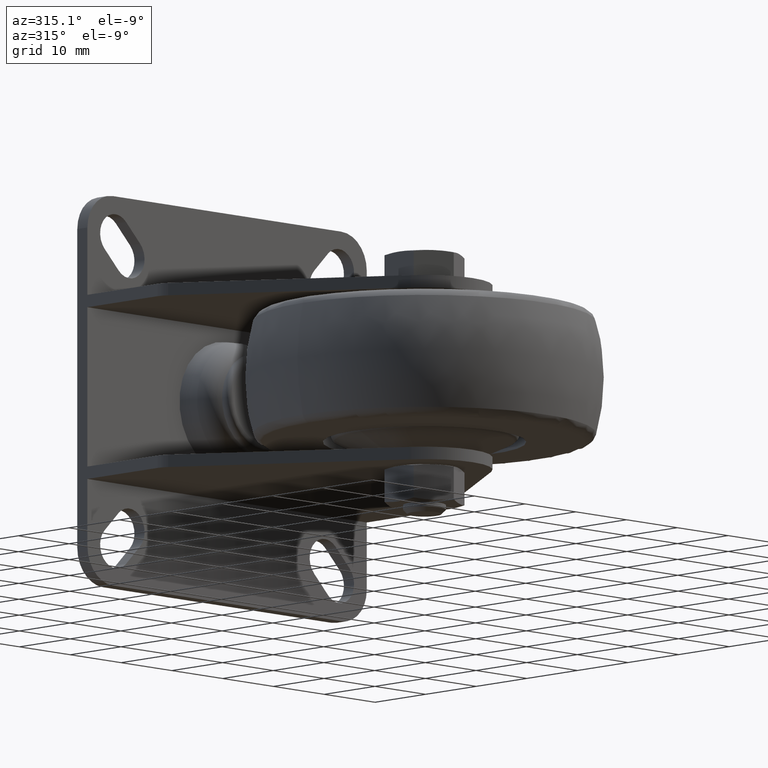
[diagram: clean part render]
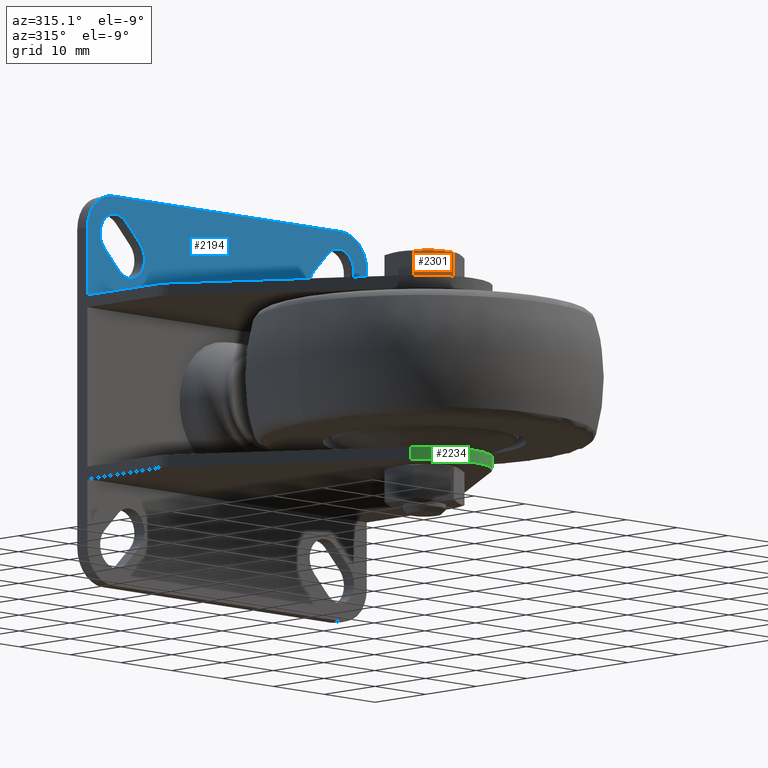
[diagram: same view with three faces highlighted in distinct colors, each labeled with its STEP entity id]
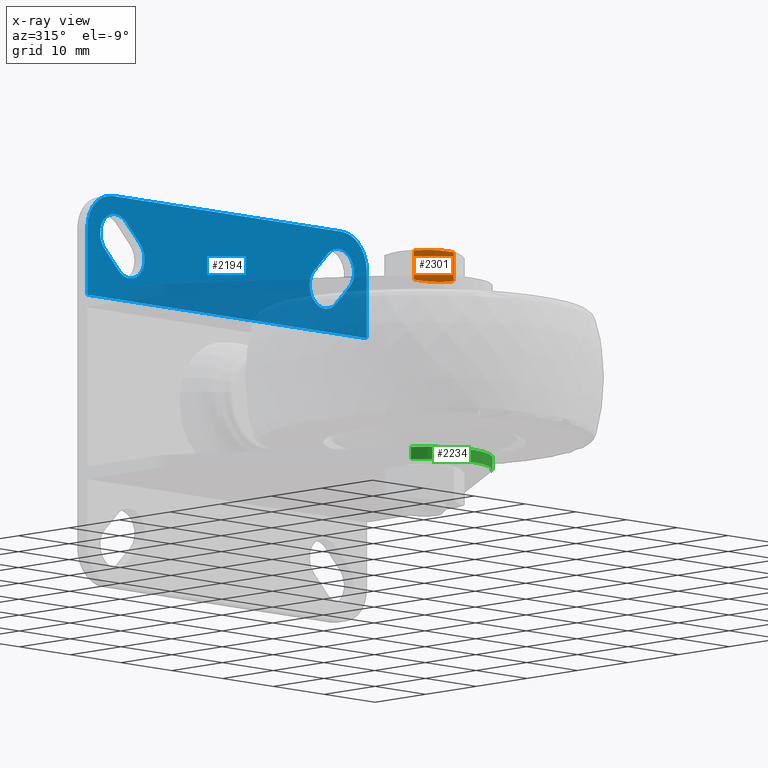
[diagram: x-ray of the same camera — body ghosted, the three highlighted faces saturated]
A machine part, auxiliary view with three faces highlighted in distinct colors.
The next image is the same camera in x-ray (body ghosted, the three faces saturated) — at least one of them is partly hidden behind the body in this view.
Their STEP definitions:

[orange] entity #2301 — the highlighted planar face has unit normal (-0.5, -0.866, 0).
#73=(
BOUNDED_CURVE()
B_SPLINE_CURVE(2,(#4230,#4231,#4232),.UNSPECIFIED.,.F.,.F.)
B_SPLINE_CURVE_WITH_KNOTS((3,3),(1.72543024172676,2.56289083292666),
 .UNSPECIFIED.)
CURVE()
GEOMETRIC_REPRESENTATION_ITEM()
RATIONAL_B_SPLINE_CURVE((2.8334591186335,3.0526279441978,3.0526279441978))
REPRESENTATION_ITEM('')
);
#74=(
BOUNDED_CURVE()
B_SPLINE_CURVE(2,(#4234,#4235,#4236),.UNSPECIFIED.,.F.,.F.)
B_SPLINE_CURVE_WITH_KNOTS((3,3),(2.56289083292666,3.40035142412655),
 .UNSPECIFIED.)
CURVE()
GEOMETRIC_REPRESENTATION_ITEM()
RATIONAL_B_SPLINE_CURVE((3.0526279441978,3.0526279441978,2.8334591186335))
REPRESENTATION_ITEM('')
);
#75=(
BOUNDED_CURVE()
B_SPLINE_CURVE(2,(#4240,#4241,#4242),.UNSPECIFIED.,.F.,.F.)
B_SPLINE_CURVE_WITH_KNOTS((3,3),(1.72543024172442,2.56289083292307),
 .UNSPECIFIED.)
CURVE()
GEOMETRIC_REPRESENTATION_ITEM()
RATIONAL_B_SPLINE_CURVE((2.83345911863049,3.05262794419439,3.05262794419439))
REPRESENTATION_ITEM('')
);
#76=(
BOUNDED_CURVE()
B_SPLINE_CURVE(2,(#4244,#4245,#4246),.UNSPECIFIED.,.F.,.F.)
B_SPLINE_CURVE_WITH_KNOTS((3,3),(2.56289083292307,3.40035142412172),
 .UNSPECIFIED.)
CURVE()
GEOMETRIC_REPRESENTATION_ITEM()
RATIONAL_B_SPLINE_CURVE((3.05262794419439,3.05262794419439,2.83345911863049))
REPRESENTATION_ITEM('')
);
#265=PLANE('',#2768);
#393=FACE_OUTER_BOUND('',#565,.T.);
#565=EDGE_LOOP('',(#2051,#2052,#2053,#2054,#2055,#2056));
#710=LINE('',#4238,#834);
#711=LINE('',#4247,#835);
#834=VECTOR('',#3444,1000.);
#835=VECTOR('',#3445,1000.);
#1166=VERTEX_POINT('',#4228);
#1167=VERTEX_POINT('',#4229);
#1168=VERTEX_POINT('',#4233);
#1169=VERTEX_POINT('',#4237);
#1170=VERTEX_POINT('',#4239);
#1171=VERTEX_POINT('',#4243);
#1465=EDGE_CURVE('',#1166,#1167,#73,.T.);
#1466=EDGE_CURVE('',#1167,#1168,#74,.T.);
#1467=EDGE_CURVE('',#1168,#1169,#710,.T.);
#1468=EDGE_CURVE('',#1169,#1170,#75,.T.);
#1469=EDGE_CURVE('',#1170,#1171,#76,.T.);
#1470=EDGE_CURVE('',#1166,#1171,#711,.T.);
#2051=ORIENTED_EDGE('',*,*,#1465,.T.);
#2052=ORIENTED_EDGE('',*,*,#1466,.T.);
#2053=ORIENTED_EDGE('',*,*,#1467,.T.);
#2054=ORIENTED_EDGE('',*,*,#1468,.T.);
#2055=ORIENTED_EDGE('',*,*,#1469,.T.);
#2056=ORIENTED_EDGE('',*,*,#1470,.F.);
#2301=ADVANCED_FACE('',(#393),#265,.T.);
#2768=AXIS2_PLACEMENT_3D('',#4227,#3442,#3443);
#3442=DIRECTION('center_axis',(0.,0.866025403784439,0.5));
#3443=DIRECTION('ref_axis',(0.,-0.5,0.866025403784439));
#3444=DIRECTION('',(1.,0.,0.));
#3445=DIRECTION('',(1.,0.,0.));
#4227=CARTESIAN_POINT('Origin',(-10.,5.77350269189626,0.));
#4228=CARTESIAN_POINT('',(-5.7927405783631,5.77350269189626,0.));
#4229=CARTESIAN_POINT('',(-6.,4.33012701892219,2.5));
#4230=CARTESIAN_POINT('Ctrl Pts',(-5.79274057836643,5.77350269189698,-1.24788752573619E-12));
#4231=CARTESIAN_POINT('Ctrl Pts',(-6.,5.00000000000029,1.33974596215511));
#4232=CARTESIAN_POINT('Ctrl Pts',(-6.,4.3301270189222,2.5));
#4233=CARTESIAN_POINT('',(-5.7927405783631,2.88675134594813,5.));
#4234=CARTESIAN_POINT('Ctrl Pts',(-6.,4.3301270189222,2.5));
#4235=CARTESIAN_POINT('Ctrl Pts',(-6.,3.6602540378441,3.66025403784489));
#4236=CARTESIAN_POINT('Ctrl Pts',(-5.79274057836643,2.88675134594742,5.00000000000125));
#4237=CARTESIAN_POINT('',(-1.7072594216369,2.88675134594813,5.));
#4238=CARTESIAN_POINT('',(-10.,2.88675134594813,5.));
#4239=CARTESIAN_POINT('',(-1.5,4.33012701892219,2.5));
#4240=CARTESIAN_POINT('Ctrl Pts',(-1.70725942164253,2.88675134594802,5.00000000000021));
#4241=CARTESIAN_POINT('Ctrl Pts',(-1.50000000000912,3.66025403784434,3.66025403784447));
#4242=CARTESIAN_POINT('Ctrl Pts',(-1.50000000000912,4.3301270189222,2.5));
#4243=CARTESIAN_POINT('',(-1.7072594216369,5.77350269189626,0.));
#4244=CARTESIAN_POINT('Ctrl Pts',(-1.50000000000912,4.3301270189222,2.5));
#4245=CARTESIAN_POINT('Ctrl Pts',(-1.50000000000912,5.00000000000005,1.33974596215553));
#4246=CARTESIAN_POINT('Ctrl Pts',(-1.70725942164253,5.77350269189638,-2.02809150754125E-13));
#4247=CARTESIAN_POINT('',(-10.,5.77350269189626,0.));

[blue] entity #2194 — the highlighted planar face has unit normal (0, -1, 0).
#186=FACE_BOUND('',#431,.T.);
#187=FACE_BOUND('',#432,.T.);
#222=PLANE('',#2544);
#286=FACE_OUTER_BOUND('',#430,.T.);
#430=EDGE_LOOP('',(#1572,#1573,#1574,#1575,#1576,#1577));
#431=EDGE_LOOP('',(#1578,#1579,#1580,#1581));
#432=EDGE_LOOP('',(#1582,#1583,#1584,#1585));
#600=LINE('',#3589,#724);
#613=LINE('',#3613,#737);
#620=LINE('',#3627,#744);
#632=LINE('',#3666,#756);
#633=LINE('',#3669,#757);
#634=LINE('',#3673,#758);
#635=LINE('',#3677,#759);
#636=LINE('',#3681,#760);
#724=VECTOR('',#2852,1000.);
#737=VECTOR('',#2867,1000.);
#744=VECTOR('',#2876,1000.);
#756=VECTOR('',#2920,1000.);
#757=VECTOR('',#2921,1000.);
#758=VECTOR('',#2924,1000.);
#759=VECTOR('',#2927,1000.);
#760=VECTOR('',#2930,1000.);
#846=CIRCLE('',#2526,5.);
#855=CIRCLE('',#2545,5.);
#856=CIRCLE('',#2546,3.);
#857=CIRCLE('',#2547,3.);
#858=CIRCLE('',#2548,3.);
#859=CIRCLE('',#2549,3.);
#999=VERTEX_POINT('',#3579);
#1000=VERTEX_POINT('',#3581);
#1001=VERTEX_POINT('',#3585);
#1003=VERTEX_POINT('',#3588);
#1013=VERTEX_POINT('',#3612);
#1019=VERTEX_POINT('',#3626);
#1031=VERTEX_POINT('',#3667);
#1032=VERTEX_POINT('',#3668);
#1033=VERTEX_POINT('',#3670);
#1034=VERTEX_POINT('',#3672);
#1035=VERTEX_POINT('',#3675);
#1036=VERTEX_POINT('',#3676);
#1037=VERTEX_POINT('',#3678);
#1038=VERTEX_POINT('',#3680);
#1198=EDGE_CURVE('',#999,#1000,#846,.T.);
#1201=EDGE_CURVE('',#1003,#1001,#600,.T.);
#1214=EDGE_CURVE('',#1013,#1000,#613,.T.);
#1221=EDGE_CURVE('',#1019,#999,#620,.T.);
#1241=EDGE_CURVE('',#1003,#1019,#855,.T.);
#1242=EDGE_CURVE('',#1013,#1001,#632,.T.);
#1243=EDGE_CURVE('',#1031,#1032,#633,.T.);
#1244=EDGE_CURVE('',#1032,#1033,#856,.T.);
#1245=EDGE_CURVE('',#1033,#1034,#634,.T.);
#1246=EDGE_CURVE('',#1034,#1031,#857,.T.);
#1247=EDGE_CURVE('',#1035,#1036,#635,.T.);
#1248=EDGE_CURVE('',#1036,#1037,#858,.T.);
#1249=EDGE_CURVE('',#1037,#1038,#636,.T.);
#1250=EDGE_CURVE('',#1038,#1035,#859,.T.);
#1572=ORIENTED_EDGE('',*,*,#1214,.T.);
#1573=ORIENTED_EDGE('',*,*,#1198,.F.);
#1574=ORIENTED_EDGE('',*,*,#1221,.F.);
#1575=ORIENTED_EDGE('',*,*,#1241,.F.);
#1576=ORIENTED_EDGE('',*,*,#1201,.T.);
#1577=ORIENTED_EDGE('',*,*,#1242,.F.);
#1578=ORIENTED_EDGE('',*,*,#1243,.T.);
#1579=ORIENTED_EDGE('',*,*,#1244,.T.);
#1580=ORIENTED_EDGE('',*,*,#1245,.T.);
#1581=ORIENTED_EDGE('',*,*,#1246,.T.);
#1582=ORIENTED_EDGE('',*,*,#1247,.T.);
#1583=ORIENTED_EDGE('',*,*,#1248,.T.);
#1584=ORIENTED_EDGE('',*,*,#1249,.T.);
#1585=ORIENTED_EDGE('',*,*,#1250,.T.);
#2194=ADVANCED_FACE('',(#286,#186,#187),#222,.T.);
#2526=AXIS2_PLACEMENT_3D('',#3582,#2846,#2847);
#2544=AXIS2_PLACEMENT_3D('',#3664,#2916,#2917);
#2545=AXIS2_PLACEMENT_3D('',#3665,#2918,#2919);
#2546=AXIS2_PLACEMENT_3D('',#3671,#2922,#2923);
#2547=AXIS2_PLACEMENT_3D('',#3674,#2925,#2926);
#2548=AXIS2_PLACEMENT_3D('',#3679,#2928,#2929);
#2549=AXIS2_PLACEMENT_3D('',#3682,#2931,#2932);
#2846=DIRECTION('center_axis',(0.,1.,0.));
#2847=DIRECTION('ref_axis',(1.,0.,0.));
#2852=DIRECTION('',(0.,0.,-1.));
#2867=DIRECTION('',(0.,0.,1.));
#2876=DIRECTION('',(1.,0.,0.));
#2916=DIRECTION('center_axis',(0.,-1.,0.));
#2917=DIRECTION('ref_axis',(0.,0.,-1.));
#2918=DIRECTION('center_axis',(0.,1.,0.));
#2919=DIRECTION('ref_axis',(1.,0.,0.));
#2920=DIRECTION('',(-1.,0.,0.));
#2921=DIRECTION('',(-0.707106781186547,0.,-0.707106781186548));
#2922=DIRECTION('center_axis',(0.,1.,0.));
#2923=DIRECTION('ref_axis',(1.,0.,0.));
#2924=DIRECTION('',(0.707106781186547,0.,0.707106781186548));
#2925=DIRECTION('center_axis',(0.,1.,0.));
#2926=DIRECTION('ref_axis',(1.,0.,0.));
#2927=DIRECTION('',(-0.707106781186547,0.,0.707106781186548));
#2928=DIRECTION('center_axis',(0.,1.,0.));
#2929=DIRECTION('ref_axis',(1.,0.,0.));
#2930=DIRECTION('',(0.707106781186548,0.,-0.707106781186547));
#2931=DIRECTION('center_axis',(0.,1.,0.));
#2932=DIRECTION('ref_axis',(1.,0.,0.));
#3579=CARTESIAN_POINT('',(22.5,39.,27.5));
#3581=CARTESIAN_POINT('',(27.5,39.,22.5));
#3582=CARTESIAN_POINT('Origin',(22.5,39.,22.5));
#3585=CARTESIAN_POINT('',(-27.5,39.,13.));
#3588=CARTESIAN_POINT('',(-27.5,39.,22.5));
#3589=CARTESIAN_POINT('',(-27.5,39.,27.5));
#3612=CARTESIAN_POINT('',(27.5,39.,13.));
#3613=CARTESIAN_POINT('',(27.5,39.,27.5));
#3626=CARTESIAN_POINT('',(-22.5,39.,27.5));
#3627=CARTESIAN_POINT('',(-24.5,39.,27.5));
#3664=CARTESIAN_POINT('Origin',(50.,39.,13.));
#3665=CARTESIAN_POINT('Origin',(-22.5,39.,22.5));
#3666=CARTESIAN_POINT('',(50.,39.,13.));
#3667=CARTESIAN_POINT('',(24.1213203435596,39.,19.8786796564404));
#3668=CARTESIAN_POINT('',(21.3713203435596,39.,17.1286796564404));
#3669=CARTESIAN_POINT('',(24.1213203435596,39.,19.8786796564404));
#3670=CARTESIAN_POINT('',(17.1286796564404,39.,21.3713203435596));
#3671=CARTESIAN_POINT('Origin',(19.25,39.,19.25));
#3672=CARTESIAN_POINT('',(19.8786796564404,39.,24.1213203435596));
#3673=CARTESIAN_POINT('',(17.1286796564404,39.,21.3713203435596));
#3674=CARTESIAN_POINT('Origin',(22.,39.,22.));
#3675=CARTESIAN_POINT('',(-21.3713203435596,39.,17.1286796564404));
#3676=CARTESIAN_POINT('',(-24.1213203435596,39.,19.8786796564404));
#3677=CARTESIAN_POINT('',(-21.3713203435596,39.,17.1286796564404));
#3678=CARTESIAN_POINT('',(-19.8786796564404,39.,24.1213203435596));
#3679=CARTESIAN_POINT('Origin',(-22.,39.,22.));
#3680=CARTESIAN_POINT('',(-17.1286796564404,39.,21.3713203435596));
#3681=CARTESIAN_POINT('',(-19.8786796564404,39.,24.1213203435596));
#3682=CARTESIAN_POINT('Origin',(-19.25,39.,19.25));

[green] entity #2234 — the highlighted cylindrical surface (partial cylindrical patch) has radius 9.5 mm, axis along (0, 0, 1).
#326=FACE_OUTER_BOUND('',#485,.T.);
#485=EDGE_LOOP('',(#1788,#1789,#1790,#1791));
#680=LINE('',#3846,#804);
#681=LINE('',#3848,#805);
#804=VECTOR('',#3126,1000.);
#805=VECTOR('',#3129,1000.);
#866=CIRCLE('',#2559,9.5);
#894=CIRCLE('',#2620,9.5);
#1049=VERTEX_POINT('',#3708);
#1050=VERTEX_POINT('',#3710);
#1081=VERTEX_POINT('',#3835);
#1082=VERTEX_POINT('',#3837);
#1264=EDGE_CURVE('',#1049,#1050,#866,.T.);
#1326=EDGE_CURVE('',#1081,#1082,#894,.T.);
#1330=EDGE_CURVE('',#1082,#1049,#680,.T.);
#1331=EDGE_CURVE('',#1081,#1050,#681,.T.);
#1788=ORIENTED_EDGE('',*,*,#1326,.F.);
#1789=ORIENTED_EDGE('',*,*,#1331,.T.);
#1790=ORIENTED_EDGE('',*,*,#1264,.F.);
#1791=ORIENTED_EDGE('',*,*,#1330,.F.);
#2169=CYLINDRICAL_SURFACE('',#2625,9.5);
#2234=ADVANCED_FACE('',(#326),#2169,.T.);
#2559=AXIS2_PLACEMENT_3D('',#3711,#2958,#2959);
#2620=AXIS2_PLACEMENT_3D('',#3838,#3114,#3115);
#2625=AXIS2_PLACEMENT_3D('',#3847,#3127,#3128);
#2958=DIRECTION('center_axis',(0.,0.,-1.));
#2959=DIRECTION('ref_axis',(-1.,0.,0.));
#3114=DIRECTION('center_axis',(0.,0.,1.));
#3115=DIRECTION('ref_axis',(1.,0.,0.));
#3126=DIRECTION('',(0.,0.,-1.));
#3127=DIRECTION('center_axis',(0.,0.,1.));
#3128=DIRECTION('ref_axis',(-1.,0.,0.));
#3129=DIRECTION('',(0.,0.,-1.));
#3708=CARTESIAN_POINT('',(7.91866640299404,-5.2483066219585,-13.));
#3710=CARTESIAN_POINT('',(-7.91866640299404,-5.24830662195849,-13.));
#3711=CARTESIAN_POINT('Origin',(1.73472347597681E-15,2.60208521396521E-15,
-13.));
#3835=CARTESIAN_POINT('',(-7.91866640299404,-5.24830662195849,-11.25));
#3837=CARTESIAN_POINT('',(7.91866640299404,-5.2483066219585,-11.25));
#3838=CARTESIAN_POINT('Origin',(1.73472347597681E-15,2.60208521396521E-15,
-11.25));
#3846=CARTESIAN_POINT('',(7.91866640299404,-5.2483066219585,27.5));
#3847=CARTESIAN_POINT('Origin',(1.73472347597681E-15,2.60208521396521E-15,
27.5));
#3848=CARTESIAN_POINT('',(-7.91866640299404,-5.24830662195849,27.5));